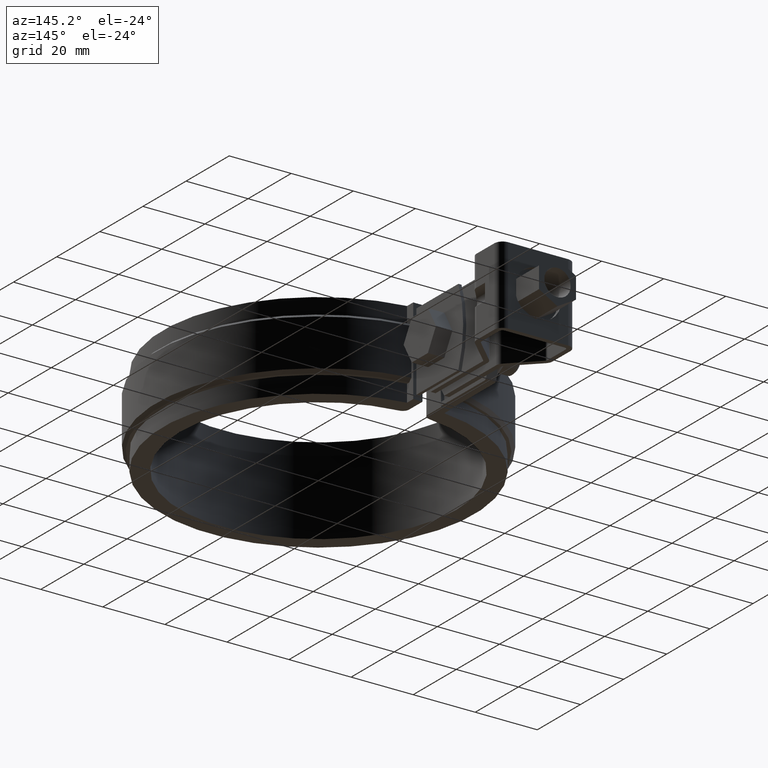
[diagram: clean part render]
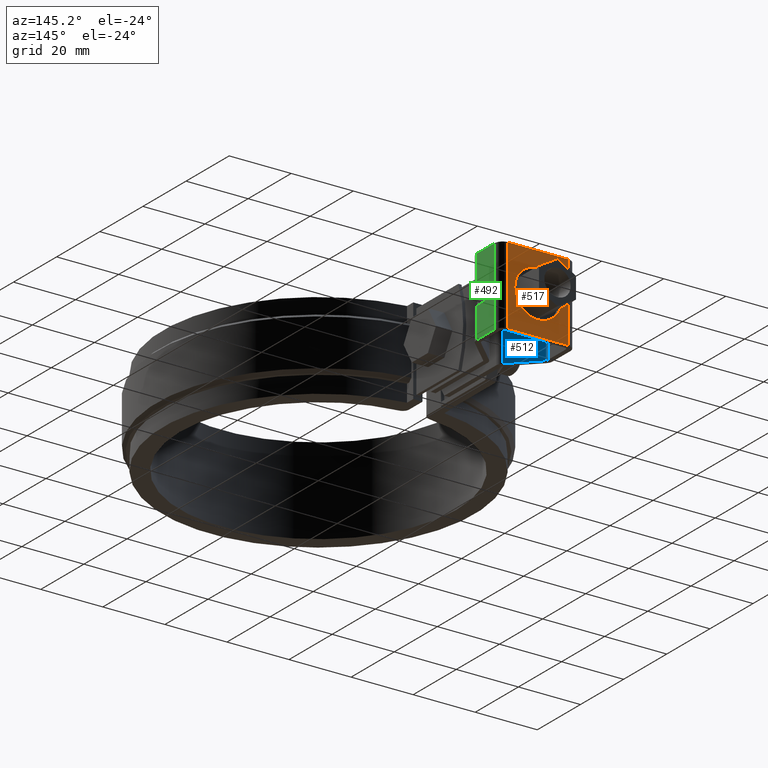
[diagram: same view with three faces highlighted in distinct colors, each labeled with its STEP entity id]
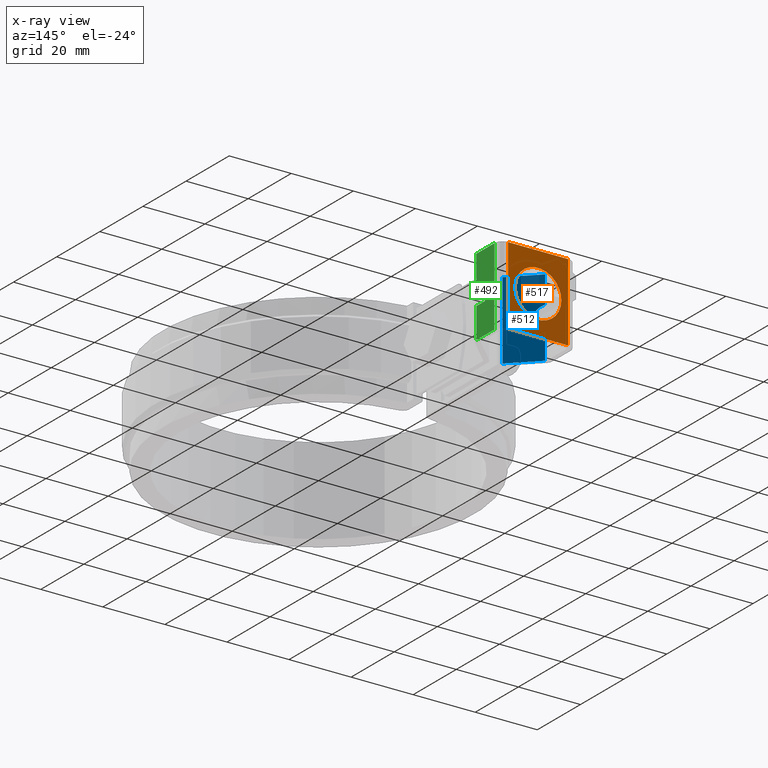
[diagram: x-ray of the same camera — body ghosted, the three highlighted faces saturated]
A machine part, auxiliary view with three faces highlighted in distinct colors.
The next image is the same camera in x-ray (body ghosted, the three faces saturated) — at least one of them is partly hidden behind the body in this view.
Their STEP definitions:

[orange] entity #517 — the highlighted planar face has unit normal (-0, 1, -0).
#517 = ADVANCED_FACE( '', ( #1019, #1020 ), #1021, .T. );
#1019 = FACE_BOUND( '', #2290, .T. );
#1020 = FACE_OUTER_BOUND( '', #2291, .T. );
#1021 = PLANE( '', #2292 );
#2290 = EDGE_LOOP( '', ( #4703 ) );
#2291 = EDGE_LOOP( '', ( #4704, #4705, #4706, #4707 ) );
#2292 = AXIS2_PLACEMENT_3D( '', #4708, #4709, #4710 );
#4703 = ORIENTED_EDGE( '', *, *, #6603, .F. );
#4704 = ORIENTED_EDGE( '', *, *, #6516, .T. );
#4705 = ORIENTED_EDGE( '', *, *, #6568, .T. );
#4706 = ORIENTED_EDGE( '', *, *, #6615, .F. );
#4707 = ORIENTED_EDGE( '', *, *, #6526, .F. );
#4708 = CARTESIAN_POINT( '', ( -9.65000000012229, 101.796388100998, 12.4999999933585 ) );
#4709 = DIRECTION( '', ( -1.14762481997310E-012, 1.00000000000000, -4.71809813440456E-011 ) );
#4710 = DIRECTION( '', ( -1.00000000000000, -1.14762481999594E-012, -4.83999649732926E-013 ) );
#6516 = EDGE_CURVE( '', #7678, #7676, #7679, .T. );
#6526 = EDGE_CURVE( '', #7678, #7694, #7697, .T. );
#6568 = EDGE_CURVE( '', #7676, #7763, #7765, .T. );
#6603 = EDGE_CURVE( '', #7823, #7823, #7824, .T. );
#6615 = EDGE_CURVE( '', #7694, #7763, #7840, .T. );
#7676 = VERTEX_POINT( '', #11085 );
#7678 = VERTEX_POINT( '', #11087 );
#7679 = LINE( '', #11088, #11089 );
#7694 = VERTEX_POINT( '', #11108 );
#7697 = LINE( '', #11112, #11113 );
#7763 = VERTEX_POINT( '', #11230 );
#7765 = LINE( '', #11232, #11233 );
#7823 = VERTEX_POINT( '', #11334 );
#7824 = CIRCLE( '', #11335, 7.50000000000000 );
#7840 = LINE( '', #11360, #11361 );
#11085 = CARTESIAN_POINT( '', ( 9.64999999987770, 101.796388101020, 12.4999999933679 ) );
#11087 = CARTESIAN_POINT( '', ( -9.65000000012229, 101.796388100998, 12.4999999933585 ) );
#11088 = CARTESIAN_POINT( '', ( -9.65000000012229, 101.796388100998, 12.4999999933585 ) );
#11089 = VECTOR( '', #12979, 1000.00000000000 );
#11108 = CARTESIAN_POINT( '', ( -9.65000000011019, 101.796388099818, -12.5000000066415 ) );
#11112 = CARTESIAN_POINT( '', ( -9.65000000012229, 101.796388100998, 12.4999999933585 ) );
#11113 = VECTOR( '', #12997, 1000.00000000000 );
#11230 = CARTESIAN_POINT( '', ( 9.64999999988980, 101.796388099841, -12.5000000066321 ) );
#11232 = CARTESIAN_POINT( '', ( 9.64999999987770, 101.796388101020, 12.4999999933679 ) );
#11233 = VECTOR( '', #13059, 1000.00000000000 );
#11334 = CARTESIAN_POINT( '', ( 7.49999999988376, 101.796398100428, -6.63317268076111E-009 ) );
#11335 = AXIS2_PLACEMENT_3D( '', #13116, #13117, #13118 );
#11360 = CARTESIAN_POINT( '', ( -9.65000000011019, 101.796388099818, -12.5000000066415 ) );
#11361 = VECTOR( '', #13134, 1000.00000000000 );
#12979 = DIRECTION( '', ( 1.00000000000000, 1.14762481999594E-012, 4.83999649732926E-013 ) );
#12997 = DIRECTION( '', ( 4.83999649787072E-013, -4.71809813440451E-011, -1.00000000000000 ) );
#13059 = DIRECTION( '', ( 4.83999649787072E-013, -4.71809813440451E-011, -1.00000000000000 ) );
#13116 = CARTESIAN_POINT( '', ( -1.16235786493719E-010, 101.796398100419, -6.63680221890672E-009 ) );
#13117 = DIRECTION( '', ( -1.14762481997310E-012, 1.00000000000000, -4.71809813440456E-011 ) );
#13118 = DIRECTION( '', ( 1.00000000000000, 1.14762481999593E-012, 4.83938419415235E-013 ) );
#13134 = DIRECTION( '', ( 1.00000000000000, 1.14762481999594E-012, 4.83999649732926E-013 ) );

[blue] entity #512 — the highlighted planar face has unit normal (0.6983, 0.7158, -0).
#512 = ADVANCED_FACE( '', ( #1008 ), #1009, .T. );
#1008 = FACE_OUTER_BOUND( '', #2279, .T. );
#1009 = PLANE( '', #2280 );
#2279 = EDGE_LOOP( '', ( #4659, #4660, #4661, #4662, #4663, #4664 ) );
#2280 = AXIS2_PLACEMENT_3D( '', #4665, #4666, #4667 );
#4659 = ORIENTED_EDGE( '', *, *, #6498, .T. );
#4660 = ORIENTED_EDGE( '', *, *, #6573, .T. );
#4661 = ORIENTED_EDGE( '', *, *, #6607, .F. );
#4662 = ORIENTED_EDGE( '', *, *, #6604, .F. );
#4663 = ORIENTED_EDGE( '', *, *, #6587, .F. );
#4664 = ORIENTED_EDGE( '', *, *, #6608, .F. );
#4665 = CARTESIAN_POINT( '', ( -10.3483238356395, 90.1764119053686, 12.4999999939064 ) );
#4666 = DIRECTION( '', ( 0.698323835529679, 0.715781964519306, -3.34333070225550E-011 ) );
#4667 = DIRECTION( '', ( -0.715781964519306, 0.698323835529679, -3.32940420763790E-011 ) );
#6498 = EDGE_CURVE( '', #7642, #7640, #7643, .T. );
#6573 = EDGE_CURVE( '', #7640, #7771, #7774, .F. );
#6587 = EDGE_CURVE( '', #7796, #7787, #7798, .T. );
#6604 = EDGE_CURVE( '', #7787, #7825, #7826, .T. );
#6607 = EDGE_CURVE( '', #7825, #7771, #7830, .T. );
#6608 = EDGE_CURVE( '', #7642, #7796, #7831, .T. );
#7640 = VERTEX_POINT( '', #11039 );
#7642 = VERTEX_POINT( '', #11041 );
#7643 = LINE( '', #11042, #11043 );
#7771 = VERTEX_POINT( '', #11241 );
#7774 = LINE( '', #11244, #11245 );
#7787 = VERTEX_POINT( '', #11262 );
#7796 = VERTEX_POINT( '', #11278 );
#7798 = ELLIPSE( '', #11285, 5.93756228945901, 4.24999999999996 );
#7825 = VERTEX_POINT( '', #11336 );
#7826 = LINE( '', #11337, #11338 );
#7830 = LINE( '', #11343, #11344 );
#7831 = LINE( '', #11345, #11346 );
#11039 = CARTESIAN_POINT( '', ( -2.18435802772052, 82.2115675830508, 12.4999999942862 ) );
#11041 = CARTESIAN_POINT( '', ( -10.3483238356395, 90.1764119053686, 12.4999999939064 ) );
#11042 = CARTESIAN_POINT( '', ( -10.3483238356395, 90.1764119053686, 12.4999999939064 ) );
#11043 = VECTOR( '', #12945, 1000.00000000000 );
#11241 = CARTESIAN_POINT( '', ( -2.18435802770842, 82.2115675818713, -12.5000000057138 ) );
#11244 = CARTESIAN_POINT( '', ( -2.18435802772051, 82.2115675830508, 12.4999999942862 ) );
#11245 = VECTOR( '', #13068, 1000.00000000000 );
#11262 = CARTESIAN_POINT( '', ( -10.3483238356316, 90.1764119045996, -3.80080620550553 ) );
#11278 = CARTESIAN_POINT( '', ( -10.3483238356353, 90.1764119049582, 3.80080619331842 ) );
#11285 = AXIS2_PLACEMENT_3D( '', #13090, #13091, #13092 );
#11336 = CARTESIAN_POINT( '', ( -10.3483238356274, 90.1764119041891, -12.5000000060936 ) );
#11337 = CARTESIAN_POINT( '', ( -10.3483238356395, 90.1764119053686, 12.4999999939064 ) );
#11338 = VECTOR( '', #13119, 1000.00000000000 );
#11343 = CARTESIAN_POINT( '', ( -10.3483238356274, 90.1764119041891, -12.5000000060936 ) );
#11344 = VECTOR( '', #13124, 1000.00000000000 );
#11345 = CARTESIAN_POINT( '', ( -10.3483238356395, 90.1764119053686, 12.4999999939064 ) );
#11346 = VECTOR( '', #13125, 1000.00000000000 );
#12945 = DIRECTION( '', ( 0.715781964519306, -0.698323835529679, 3.32940420763790E-011 ) );
#13068 = DIRECTION( '', ( -4.83938419469381E-013, 4.71809216071525E-011, 1.00000000000000 ) );
#13090 = CARTESIAN_POINT( '', ( -12.2500000001050, 92.0317056379773, -6.18201323465684E-009 ) );
#13091 = DIRECTION( '', ( 0.698323835529679, 0.715781964519306, -3.34333070225550E-011 ) );
#13092 = DIRECTION( '', ( -0.715781964519306, 0.698323835529679, -3.32940420763790E-011 ) );
#13119 = DIRECTION( '', ( 4.83999649787072E-013, -4.71809813440451E-011, -1.00000000000000 ) );
#13124 = DIRECTION( '', ( 0.715781964519306, -0.698323835529679, 3.32940420763790E-011 ) );
#13125 = DIRECTION( '', ( 4.83999649787072E-013, -4.71809813440451E-011, -1.00000000000000 ) );

[green] entity #492 — the highlighted planar face has unit normal (1, 0, 0).
#492 = ADVANCED_FACE( '', ( #964 ), #965, .T. );
#964 = FACE_OUTER_BOUND( '', #2235, .T. );
#965 = PLANE( '', #2236 );
#2235 = EDGE_LOOP( '', ( #4503, #4504, #4505, #4506, #4507, #4508, #4509, #4510 ) );
#2236 = AXIS2_PLACEMENT_3D( '', #4511, #4512, #4513 );
#4503 = ORIENTED_EDGE( '', *, *, #6553, .T. );
#4504 = ORIENTED_EDGE( '', *, *, #6554, .T. );
#4505 = ORIENTED_EDGE( '', *, *, #6555, .F. );
#4506 = ORIENTED_EDGE( '', *, *, #6514, .F. );
#4507 = ORIENTED_EDGE( '', *, *, #6551, .T. );
#4508 = ORIENTED_EDGE( '', *, *, #6539, .T. );
#4509 = ORIENTED_EDGE( '', *, *, #6549, .F. );
#4510 = ORIENTED_EDGE( '', *, *, #6535, .F. );
#4511 = CARTESIAN_POINT( '', ( 12.2499999998902, 90.8921939001375, 12.4999999938836 ) );
#4512 = DIRECTION( '', ( 1.00000000000000, 1.14750235936055E-012, 4.83999649732932E-013 ) );
#4513 = DIRECTION( '', ( 1.14750235933772E-012, -1.00000000000000, 4.71809813440456E-011 ) );
#6514 = EDGE_CURVE( '', #7672, #7674, #7675, .T. );
#6535 = EDGE_CURVE( '', #7711, #7713, #7714, .T. );
#6539 = EDGE_CURVE( '', #7721, #7719, #7722, .T. );
#6549 = EDGE_CURVE( '', #7713, #7719, #7738, .T. );
#6551 = EDGE_CURVE( '', #7672, #7721, #7740, .T. );
#6553 = EDGE_CURVE( '', #7711, #7742, #7743, .T. );
#6554 = EDGE_CURVE( '', #7742, #7744, #7745, .T. );
#6555 = EDGE_CURVE( '', #7674, #7744, #7746, .T. );
#7672 = VERTEX_POINT( '', #11080 );
#7674 = VERTEX_POINT( '', #11082 );
#7675 = LINE( '', #11083, #11084 );
#7711 = VERTEX_POINT( '', #11130 );
#7713 = VERTEX_POINT( '', #11141 );
#7714 = LINE( '', #11142, #11143 );
#7719 = VERTEX_POINT( '', #11148 );
#7721 = VERTEX_POINT( '', #11150 );
#7722 = LINE( '', #11151, #11152 );
#7738 = LINE( '', #11189, #11190 );
#7740 = LINE( '', #11193, #11194 );
#7742 = VERTEX_POINT( '', #11197 );
#7743 = LINE( '', #11198, #11199 );
#7744 = VERTEX_POINT( '', #11200 );
#7745 = LINE( '', #11201, #11202 );
#7746 = LINE( '', #11203, #11204 );
#11080 = CARTESIAN_POINT( '', ( 12.2499999998902, 90.8921939001375, 12.4999999938836 ) );
#11082 = CARTESIAN_POINT( '', ( 12.2499999998807, 99.1963881010234, 12.4999999934918 ) );
#11083 = CARTESIAN_POINT( '', ( 12.2499999998902, 90.8921939001375, 12.4999999938836 ) );
#11084 = VECTOR( '', #12975, 1000.00000000000 );
#11130 = CARTESIAN_POINT( '', ( 12.2499999998975, 90.8921938994226, -2.65000000611633 ) );
#11141 = CARTESIAN_POINT( '', ( 12.2499999998931, 94.7963881003083, -2.65000000630054 ) );
#11142 = CARTESIAN_POINT( '', ( 12.2499999999045, 84.7963881003083, -2.65000000582873 ) );
#11143 = VECTOR( '', #13013, 1000.00000000000 );
#11148 = CARTESIAN_POINT( '', ( 12.2499999998905, 94.7963881005584, 2.64999999369940 ) );
#11150 = CARTESIAN_POINT( '', ( 12.2499999998950, 90.8921938996727, 2.64999999388361 ) );
#11151 = CARTESIAN_POINT( '', ( 12.2499999999020, 84.7963881005583, 2.64999999417122 ) );
#11152 = VECTOR( '', #13023, 1000.00000000000 );
#11189 = CARTESIAN_POINT( '', ( 12.2499999998938, 94.7963881002331, -4.25000000630053 ) );
#11190 = VECTOR( '', #13034, 1000.00000000000 );
#11193 = CARTESIAN_POINT( '', ( 12.2499999998902, 90.8921939001375, 12.4999999938836 ) );
#11194 = VECTOR( '', #13036, 1000.00000000000 );
#11197 = CARTESIAN_POINT( '', ( 12.2499999999023, 90.8921938989580, -12.5000000061164 ) );
#11198 = CARTESIAN_POINT( '', ( 12.2499999998902, 90.8921939001375, 12.4999999938836 ) );
#11199 = VECTOR( '', #13038, 1000.00000000000 );
#11200 = CARTESIAN_POINT( '', ( 12.2499999998928, 99.1963880998438, -12.5000000065082 ) );
#11201 = CARTESIAN_POINT( '', ( 12.2499999999023, 90.8921938989580, -12.5000000061164 ) );
#11202 = VECTOR( '', #13039, 1000.00000000000 );
#11203 = CARTESIAN_POINT( '', ( 12.2499999998807, 99.1963881010234, 12.4999999934918 ) );
#11204 = VECTOR( '', #13040, 1000.00000000000 );
#12975 = DIRECTION( '', ( -1.14750235933772E-012, 1.00000000000000, -4.71809813440456E-011 ) );
#13013 = DIRECTION( '', ( -1.14750235933772E-012, 1.00000000000000, -4.71809813440456E-011 ) );
#13023 = DIRECTION( '', ( -1.14750235933772E-012, 1.00000000000000, -4.71809813440456E-011 ) );
#13034 = DIRECTION( '', ( -4.83997799251091E-013, 4.71809813440451E-011, 1.00000000000000 ) );
#13036 = DIRECTION( '', ( 4.83999649787072E-013, -4.71809813440451E-011, -1.00000000000000 ) );
#13038 = DIRECTION( '', ( 4.83999649787072E-013, -4.71809813440451E-011, -1.00000000000000 ) );
#13039 = DIRECTION( '', ( -1.14750235933772E-012, 1.00000000000000, -4.71809813440456E-011 ) );
#13040 = DIRECTION( '', ( 4.83999649787072E-013, -4.71809813440451E-011, -1.00000000000000 ) );